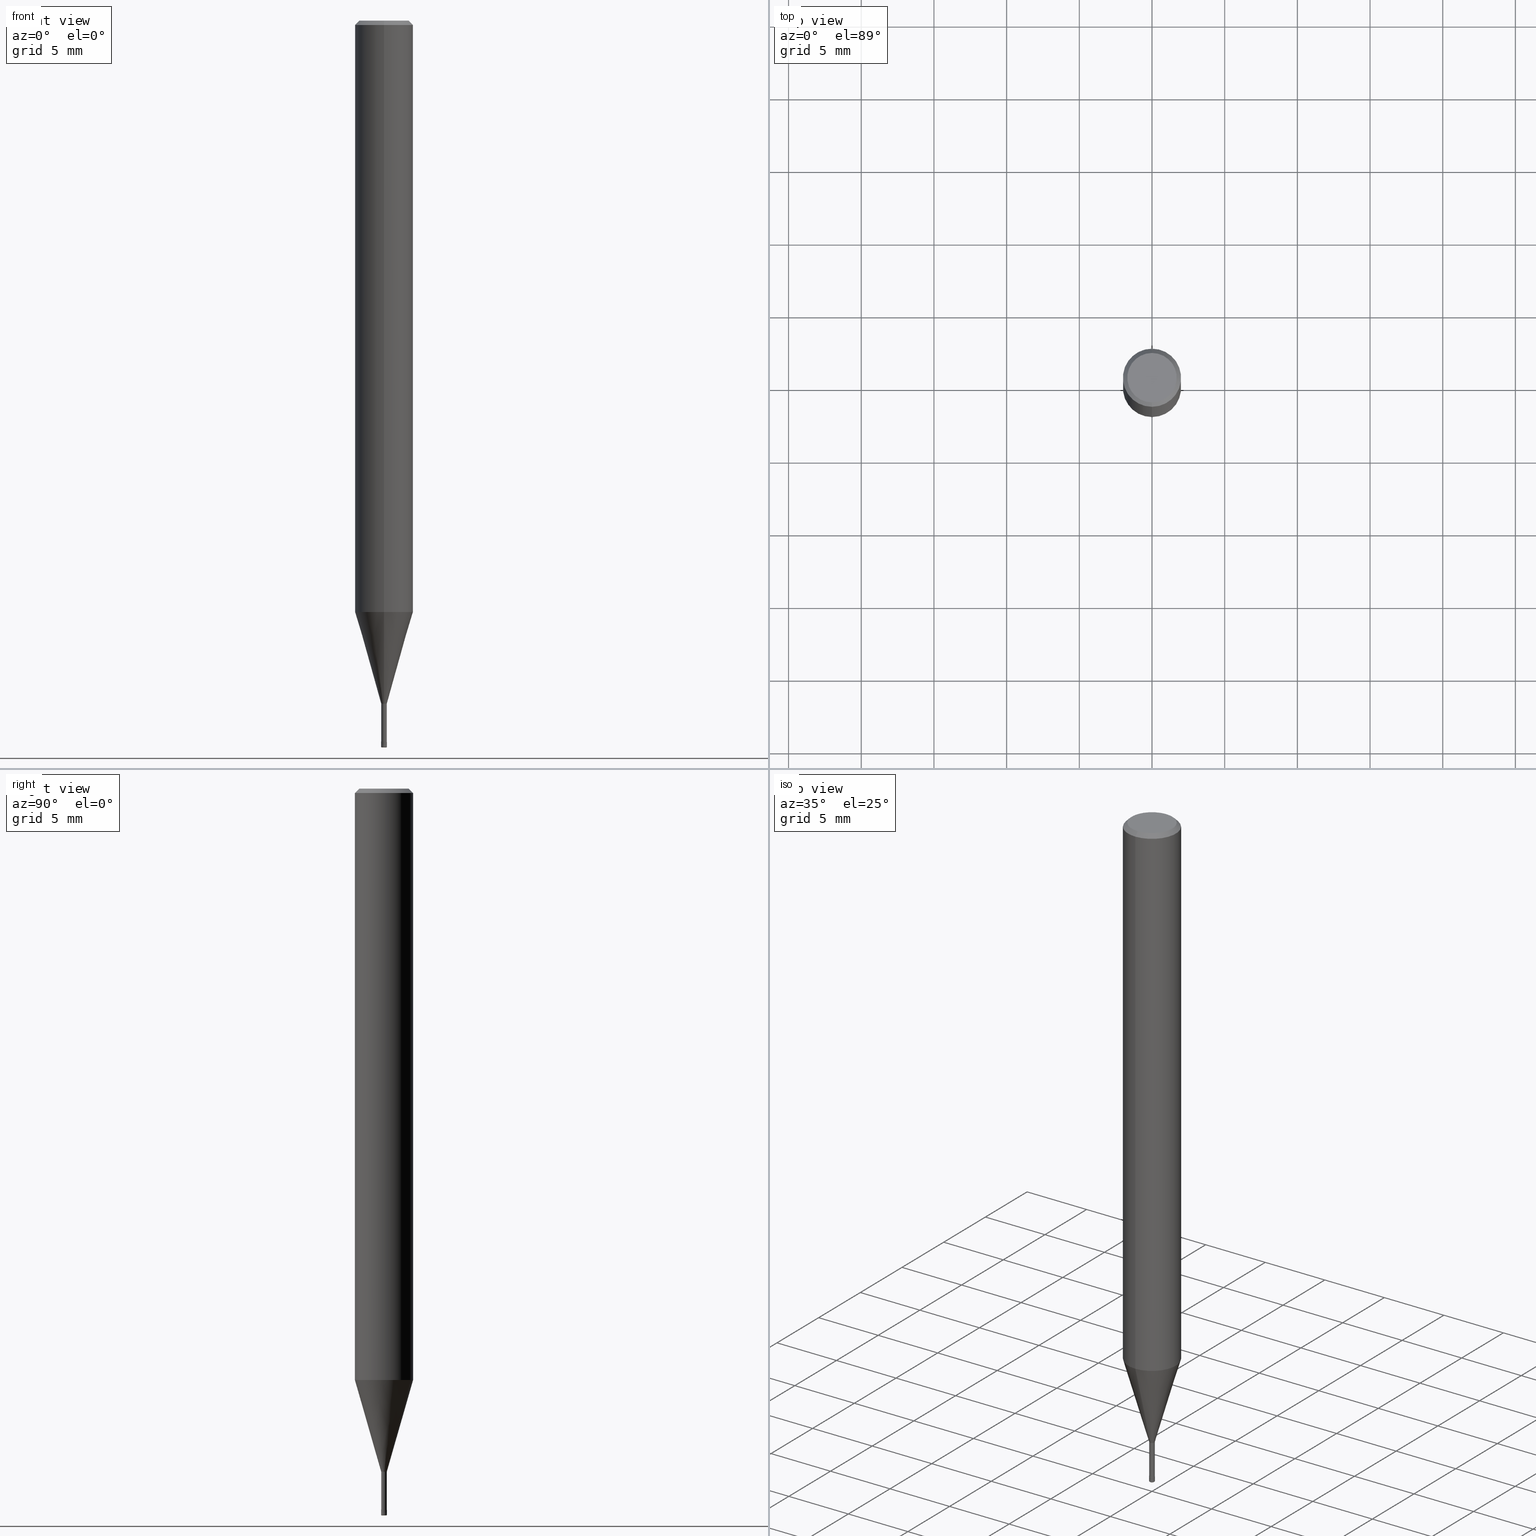
[diagram: canonical four-view strip — front | top / right | iso, engineering-drawing reading convention]
A machine part, canonical four-view strip (front | top / right | iso — engineering-drawing reading convention). The complete STEP part file that produces these views, byte-faithful:
ISO-10303-21;
HEADER;
FILE_DESCRIPTION(('no description'),'unknown implementation level');
FILE_NAME('HLRS2004-005-030E-Huellk.stp','  ',('CIMSOURCE GmbH'),('CADClick - KiM GmbH - www.kimweb.de'),'unknown preprocess','ACIS','unknown authorization');
FILE_SCHEMA(('automotive_design'));
ENDSEC;
DATA;
#1=MECHANICAL_DESIGN_GEOMETRIC_PRESENTATION_REPRESENTATION(' ',(#14,#15,#16,#17,#18,#19,#20,#21,#22,#23,#24,#25,#26,#27,#28,#29,#30,#31,#32,#33,#34,#35,#36,#37,#38,#39,#40,#41,#42,#43,#44,#45,#46,#47,#48,#49,#50,#51,#52,#53,#54,#55,#56,#57,#58,#59,#60,#61,#62,#63,#64,#65,#66,#67,#68,#69,#70,#71,#72,#73,#74,#75,#76,#77,#78,#79,#80),#10);
#2=PRODUCT_DEFINITION_CONTEXT('',#81,'design');
#3=APPLICATION_PROTOCOL_DEFINITION('INTERNATIONAL STANDARD','automotive_design',1994,#81);
#4=PRODUCT_CATEGORY_RELATIONSHIP('NONE','NONE',#82,#83);
#5=SHAPE_DEFINITION_REPRESENTATION(#84,#85);
#6=PRODUCT_DEFINITION_CONTEXT('',#86,'design');
#7=APPLICATION_PROTOCOL_DEFINITION('INTERNATIONAL STANDARD','automotive_design',1994,#86);
#8=PRODUCT_CATEGORY_RELATIONSHIP('NONE','NONE',#87,#88);
#9=SHAPE_DEFINITION_REPRESENTATION(#89,#90);
#10= (GEOMETRIC_REPRESENTATION_CONTEXT(3)GLOBAL_UNCERTAINTY_ASSIGNED_CONTEXT((#93))GLOBAL_UNIT_ASSIGNED_CONTEXT((#95,#96,#97))REPRESENTATION_CONTEXT('NONE','WORKSPACE'));
#14=STYLED_ITEM('',(#99),#100);
#15=STYLED_ITEM('',(#101),#102);
#16=STYLED_ITEM('',(#103),#104);
#17=STYLED_ITEM('',(#105),#106);
#18=STYLED_ITEM('',(#107),#108);
#19=STYLED_ITEM('',(#109),#110);
#20=STYLED_ITEM('',(#111),#112);
#21=STYLED_ITEM('',(#113),#114);
#22=STYLED_ITEM('',(#115),#116);
#23=STYLED_ITEM('',(#117),#118);
#24=STYLED_ITEM('',(#119),#120);
#25=STYLED_ITEM('',(#121),#122);
#26=STYLED_ITEM('',(#123),#124);
#27=STYLED_ITEM('',(#125),#126);
#28=STYLED_ITEM('',(#127),#128);
#29=STYLED_ITEM('',(#129),#130);
#30=STYLED_ITEM('',(#131),#132);
#31=STYLED_ITEM('',(#133),#134);
#32=STYLED_ITEM('',(#135),#136);
#33=STYLED_ITEM('',(#137),#138);
#34=STYLED_ITEM('',(#139),#140);
#35=STYLED_ITEM('',(#141),#142);
#36=STYLED_ITEM('',(#143),#144);
#37=STYLED_ITEM('',(#145),#146);
#38=STYLED_ITEM('',(#147),#148);
#39=STYLED_ITEM('',(#149),#150);
#40=STYLED_ITEM('',(#151),#152);
#41=STYLED_ITEM('',(#153),#154);
#42=STYLED_ITEM('',(#155),#156);
#43=STYLED_ITEM('',(#157),#158);
#44=STYLED_ITEM('',(#159),#160);
#45=STYLED_ITEM('',(#161),#162);
#46=STYLED_ITEM('',(#163),#164);
#47=STYLED_ITEM('',(#165),#166);
#48=STYLED_ITEM('',(#167),#168);
#49=STYLED_ITEM('',(#169),#170);
#50=STYLED_ITEM('',(#171),#172);
#51=STYLED_ITEM('',(#173),#174);
#52=STYLED_ITEM('',(#175),#176);
#53=STYLED_ITEM('',(#177),#178);
#54=STYLED_ITEM('',(#179),#180);
#55=STYLED_ITEM('',(#181),#182);
#56=STYLED_ITEM('',(#183),#184);
#57=STYLED_ITEM('',(#185),#186);
#58=STYLED_ITEM('',(#187),#188);
#59=STYLED_ITEM('',(#189),#190);
#60=STYLED_ITEM('',(#191),#192);
#61=STYLED_ITEM('',(#193),#194);
#62=STYLED_ITEM('',(#195),#196);
#63=STYLED_ITEM('',(#197),#198);
#64=STYLED_ITEM('',(#199),#200);
#65=STYLED_ITEM('',(#201),#202);
#66=STYLED_ITEM('',(#203),#204);
#67=STYLED_ITEM('',(#205),#206);
#68=STYLED_ITEM('',(#207),#208);
#69=STYLED_ITEM('',(#209),#210);
#70=STYLED_ITEM('',(#211),#212);
#71=STYLED_ITEM('',(#213),#214);
#72=STYLED_ITEM('',(#215),#216);
#73=STYLED_ITEM('',(#217),#218);
#74=STYLED_ITEM('',(#219),#220);
#75=STYLED_ITEM('',(#221),#222);
#76=STYLED_ITEM('',(#223),#224);
#77=STYLED_ITEM('',(#225),#226);
#78=STYLED_ITEM('',(#227),#228);
#79=STYLED_ITEM('',(#229),#230);
#80=STYLED_ITEM('',(#231),#232);
#81=APPLICATION_CONTEXT(' ');
#82=PRODUCT_CATEGORY('part','NONE');
#83=PRODUCT_RELATED_PRODUCT_CATEGORY('detail',' ',(#233));
#84=PRODUCT_DEFINITION_SHAPE('NONE','NONE',#234);
#85=ADVANCED_BREP_SHAPE_REPRESENTATION('1',(#126,#235),#10);
#86=APPLICATION_CONTEXT(' ');
#87=PRODUCT_CATEGORY('part','NONE');
#88=PRODUCT_RELATED_PRODUCT_CATEGORY('detail',' ',(#236));
#89=PRODUCT_DEFINITION_SHAPE('NONE','NONE',#237);
#90=ADVANCED_BREP_SHAPE_REPRESENTATION('2',(#226,#238),#10);
#93=UNCERTAINTY_MEASURE_WITH_UNIT(LENGTH_MEASURE(1.0E-006),#95,'','');
#95= (CONVERSION_BASED_UNIT('MILLIMETRE',#241)LENGTH_UNIT()NAMED_UNIT(#244));
#96= (NAMED_UNIT(#246)PLANE_ANGLE_UNIT()SI_UNIT($,.RADIAN.));
#97= (NAMED_UNIT(#246)SOLID_ANGLE_UNIT()SI_UNIT($,.STERADIAN.));
#99=PRESENTATION_STYLE_ASSIGNMENT((#252));
#100=ADVANCED_FACE('',(#253),#254,.T.);
#101=PRESENTATION_STYLE_ASSIGNMENT((#255));
#102=ADVANCED_FACE('',(#256),#257,.T.);
#103=PRESENTATION_STYLE_ASSIGNMENT((#258));
#104=ADVANCED_FACE('',(#259),#260,.T.);
#105=PRESENTATION_STYLE_ASSIGNMENT((#261));
#106=VERTEX_POINT('',#262);
#107=PRESENTATION_STYLE_ASSIGNMENT((#263));
#108=ADVANCED_FACE('',(#264),#265,.T.);
#109=PRESENTATION_STYLE_ASSIGNMENT((#266));
#110=VERTEX_POINT('',#267);
#111=PRESENTATION_STYLE_ASSIGNMENT((#268));
#112=VERTEX_POINT('',#269);
#113=PRESENTATION_STYLE_ASSIGNMENT((#270));
#114=VERTEX_POINT('',#271);
#115=PRESENTATION_STYLE_ASSIGNMENT((#272));
#116=ADVANCED_FACE('',(#273,#274),#275,.T.);
#117=PRESENTATION_STYLE_ASSIGNMENT((#276));
#118=ADVANCED_FACE('',(#277),#278,.T.);
#119=PRESENTATION_STYLE_ASSIGNMENT((#279));
#120=EDGE_CURVE('',#208,#112,#280,.T.);
#121=PRESENTATION_STYLE_ASSIGNMENT((#281));
#122=ADVANCED_FACE('',(#282),#283,.T.);
#123=PRESENTATION_STYLE_ASSIGNMENT((#284));
#124=VERTEX_POINT('',#285);
#125=PRESENTATION_STYLE_ASSIGNMENT((#286));
#126=MANIFOLD_SOLID_BREP('1',#287);
#127=PRESENTATION_STYLE_ASSIGNMENT((#288));
#128=EDGE_CURVE('',#156,#194,#289,.T.);
#129=PRESENTATION_STYLE_ASSIGNMENT((#290));
#130=ADVANCED_FACE('',(#291),#292,.T.);
#131=PRESENTATION_STYLE_ASSIGNMENT((#293));
#132=EDGE_CURVE('',#162,#114,#294,.T.);
#133=PRESENTATION_STYLE_ASSIGNMENT((#295));
#134=EDGE_CURVE('',#162,#218,#296,.T.);
#135=PRESENTATION_STYLE_ASSIGNMENT((#297));
#136=ADVANCED_FACE('',(#298),#299,.T.);
#137=PRESENTATION_STYLE_ASSIGNMENT((#300));
#138=VERTEX_POINT('',#301);
#139=PRESENTATION_STYLE_ASSIGNMENT((#302));
#140=EDGE_CURVE('',#228,#110,#303,.T.);
#141=PRESENTATION_STYLE_ASSIGNMENT((#304));
#142=ADVANCED_FACE('',(#305),#306,.T.);
#143=PRESENTATION_STYLE_ASSIGNMENT((#307));
#144=EDGE_CURVE('',#112,#138,#308,.T.);
#145=PRESENTATION_STYLE_ASSIGNMENT((#309));
#146=EDGE_CURVE('',#198,#124,#310,.T.);
#147=PRESENTATION_STYLE_ASSIGNMENT((#311));
#148=EDGE_CURVE('',#112,#208,#312,.T.);
#149=PRESENTATION_STYLE_ASSIGNMENT((#313));
#150=ADVANCED_FACE('',(#314),#315,.T.);
#151=PRESENTATION_STYLE_ASSIGNMENT((#316));
#152=VERTEX_POINT('',#317);
#153=PRESENTATION_STYLE_ASSIGNMENT((#318));
#154=EDGE_CURVE('',#106,#114,#319,.T.);
#155=PRESENTATION_STYLE_ASSIGNMENT((#320));
#156=VERTEX_POINT('',#321);
#157=PRESENTATION_STYLE_ASSIGNMENT((#322));
#158=VERTEX_POINT('',#323);
#159=PRESENTATION_STYLE_ASSIGNMENT((#324));
#160=ADVANCED_FACE('',(#325),#326,.T.);
#161=PRESENTATION_STYLE_ASSIGNMENT((#327));
#162=VERTEX_POINT('',#328);
#163=PRESENTATION_STYLE_ASSIGNMENT((#329));
#164=EDGE_CURVE('',#124,#198,#330,.T.);
#165=PRESENTATION_STYLE_ASSIGNMENT((#331));
#166=VERTEX_POINT('',#332);
#167=PRESENTATION_STYLE_ASSIGNMENT((#333));
#168=EDGE_CURVE('',#194,#192,#334,.T.);
#169=PRESENTATION_STYLE_ASSIGNMENT((#335));
#170=ADVANCED_FACE('',(#336),#337,.T.);
#171=PRESENTATION_STYLE_ASSIGNMENT((#338));
#172=EDGE_CURVE('',#152,#208,#339,.T.);
#173=PRESENTATION_STYLE_ASSIGNMENT((#340));
#174=EDGE_CURVE('',#114,#106,#341,.T.);
#175=PRESENTATION_STYLE_ASSIGNMENT((#342));
#176=ADVANCED_FACE('',(#343),#344,.T.);
#177=PRESENTATION_STYLE_ASSIGNMENT((#345));
#178=EDGE_CURVE('',#166,#156,#346,.T.);
#179=PRESENTATION_STYLE_ASSIGNMENT((#347));
#180=ADVANCED_FACE('',(#348),#349,.T.);
#181=PRESENTATION_STYLE_ASSIGNMENT((#350));
#182=ADVANCED_FACE('',(#351),#352,.T.);
#183=PRESENTATION_STYLE_ASSIGNMENT((#353));
#184=EDGE_CURVE('',#158,#162,#354,.T.);
#185=PRESENTATION_STYLE_ASSIGNMENT((#355));
#186=EDGE_CURVE('',#152,#138,#356,.T.);
#187=PRESENTATION_STYLE_ASSIGNMENT((#357));
#188=EDGE_CURVE('',#110,#166,#358,.T.);
#189=PRESENTATION_STYLE_ASSIGNMENT((#359));
#190=ADVANCED_FACE('',(#360),#361,.T.);
#191=PRESENTATION_STYLE_ASSIGNMENT((#362));
#192=VERTEX_POINT('',#363);
#193=PRESENTATION_STYLE_ASSIGNMENT((#364));
#194=VERTEX_POINT('',#365);
#195=PRESENTATION_STYLE_ASSIGNMENT((#366));
#196=EDGE_CURVE('',#206,#158,#367,.T.);
#197=PRESENTATION_STYLE_ASSIGNMENT((#368));
#198=VERTEX_POINT('',#369);
#199=PRESENTATION_STYLE_ASSIGNMENT((#370));
#200=EDGE_CURVE('',#106,#218,#371,.T.);
#201=PRESENTATION_STYLE_ASSIGNMENT((#372));
#202=EDGE_CURVE('',#138,#152,#373,.T.);
#203=PRESENTATION_STYLE_ASSIGNMENT((#374));
#204=EDGE_CURVE('',#198,#112,#375,.T.);
#205=PRESENTATION_STYLE_ASSIGNMENT((#376));
#206=VERTEX_POINT('',#377);
#207=PRESENTATION_STYLE_ASSIGNMENT((#378));
#208=VERTEX_POINT('',#379);
#209=PRESENTATION_STYLE_ASSIGNMENT((#380));
#210=EDGE_CURVE('',#208,#124,#381,.T.);
#211=PRESENTATION_STYLE_ASSIGNMENT((#382));
#212=EDGE_CURVE('',#218,#206,#383,.T.);
#213=PRESENTATION_STYLE_ASSIGNMENT((#384));
#214=EDGE_CURVE('',#158,#206,#385,.T.);
#215=PRESENTATION_STYLE_ASSIGNMENT((#386));
#216=EDGE_CURVE('',#192,#194,#387,.T.);
#217=PRESENTATION_STYLE_ASSIGNMENT((#388));
#218=VERTEX_POINT('',#389);
#219=PRESENTATION_STYLE_ASSIGNMENT((#390));
#220=EDGE_CURVE('',#218,#162,#391,.T.);
#221=PRESENTATION_STYLE_ASSIGNMENT((#392));
#222=EDGE_CURVE('',#156,#166,#393,.T.);
#223=PRESENTATION_STYLE_ASSIGNMENT((#394));
#224=EDGE_CURVE('',#110,#228,#395,.T.);
#225=PRESENTATION_STYLE_ASSIGNMENT((#396));
#226=MANIFOLD_SOLID_BREP('2',#397);
#227=PRESENTATION_STYLE_ASSIGNMENT((#398));
#228=VERTEX_POINT('',#399);
#229=PRESENTATION_STYLE_ASSIGNMENT((#400));
#230=EDGE_CURVE('',#156,#228,#401,.T.);
#231=PRESENTATION_STYLE_ASSIGNMENT((#402));
#232=EDGE_CURVE('',#192,#166,#403,.T.);
#233=PRODUCT('1','1','PART-1-DESC',(#404));
#234=PRODUCT_DEFINITION('NONE','NONE',#405,#2);
#235=AXIS2_PLACEMENT_3D('',#406,#407,#408);
#236=PRODUCT('2','2','PART-2-DESC',(#409));
#237=PRODUCT_DEFINITION('NONE','NONE',#410,#6);
#238=AXIS2_PLACEMENT_3D('',#411,#412,#413);
#241=LENGTH_MEASURE_WITH_UNIT(LENGTH_MEASURE(1.0),#414);
#244=DIMENSIONAL_EXPONENTS(1.0,0.0,0.0,0.0,0.0,0.0,0.0);
#246=DIMENSIONAL_EXPONENTS(0.0,0.0,0.0,0.0,0.0,0.0,0.0);
#252=SURFACE_STYLE_USAGE(.BOTH.,#415);
#253=FACE_OUTER_BOUND('',#416,.T.);
#254=CYLINDRICAL_SURFACE('',#417,0.18995);
#255=SURFACE_STYLE_USAGE(.BOTH.,#418);
#256=FACE_OUTER_BOUND('',#419,.T.);
#257=CONICAL_SURFACE('',#420,1.09495,0.279261921280279);
#258=SURFACE_STYLE_USAGE(.BOTH.,#421);
#259=FACE_OUTER_BOUND('',#422,.T.);
#260=PLANE('',#423);
#261=POINT_STYLE(' ',#424,POSITIVE_LENGTH_MEASURE(1.0E-006),#425);
#262=CARTESIAN_POINT('',(0.0,1.7,0.0));
#263=SURFACE_STYLE_USAGE(.BOTH.,#426);
#264=FACE_OUTER_BOUND('',#427,.T.);
#265=TOROIDAL_SURFACE('',#428,0.15,0.0499999999999998);
#266=POINT_STYLE(' ',#429,POSITIVE_LENGTH_MEASURE(1.0E-006),#430);
#267=CARTESIAN_POINT('',(0.0,0.15,-50.0));
#268=POINT_STYLE(' ',#431,POSITIVE_LENGTH_MEASURE(1.0E-006),#432);
#269=CARTESIAN_POINT('',(2.3261397690856E-017,-0.18995,-47.0));
#270=POINT_STYLE(' ',#433,POSITIVE_LENGTH_MEASURE(1.0E-006),#434);
#271=CARTESIAN_POINT('',(2.08183080149804E-016,-1.7,0.0));
#272=SURFACE_STYLE_USAGE(.BOTH.,#435);
#273=FACE_OUTER_BOUND('',#436,.T.);
#274=FACE_BOUND('',#437,.T.);
#275=PLANE('',#438);
#276=SURFACE_STYLE_USAGE(.BOTH.,#439);
#277=FACE_OUTER_BOUND('',#440,.T.);
#278=CONICAL_SURFACE('',#441,0.19995,0.000285714277939796);
#279=CURVE_STYLE('',#442,POSITIVE_LENGTH_MEASURE(1.0E-006),#443);
#280=CIRCLE('',#444,0.18995);
#281=SURFACE_STYLE_USAGE(.BOTH.,#445);
#282=FACE_OUTER_BOUND('',#446,.T.);
#283=CONICAL_SURFACE('',#447,1.09495,0.279261921280279);
#284=POINT_STYLE(' ',#448,POSITIVE_LENGTH_MEASURE(1.0E-006),#449);
#285=CARTESIAN_POINT('',(0.0,0.18995,-49.6));
#286=SURFACE_STYLE_USAGE(.BOTH.,#450);
#287=CLOSED_SHELL('',(#100,#102,#182,#170,#116,#104,#190,#130,#122,#150,#176));
#288=CURVE_STYLE('',#451,POSITIVE_LENGTH_MEASURE(1.0E-006),#452);
#289=LINE('',#453,#454);
#290=SURFACE_STYLE_USAGE(.BOTH.,#455);
#291=FACE_OUTER_BOUND('',#456,.T.);
#292=CYLINDRICAL_SURFACE('',#457,2.0);
#293=CURVE_STYLE('',#458,POSITIVE_LENGTH_MEASURE(1.0E-006),#459);
#294=LINE('',#460,#461);
#295=CURVE_STYLE('',#462,POSITIVE_LENGTH_MEASURE(1.0E-006),#463);
#296=CIRCLE('',#464,2.0);
#297=SURFACE_STYLE_USAGE(.BOTH.,#465);
#298=FACE_OUTER_BOUND('',#466,.T.);
#299=TOROIDAL_SURFACE('',#467,0.15,0.0499999999999998);
#300=POINT_STYLE(' ',#468,POSITIVE_LENGTH_MEASURE(1.0E-006),#469);
#301=CARTESIAN_POINT('',(2.44915147732706E-016,-1.99995,-40.688));
#302=CURVE_STYLE('',#470,POSITIVE_LENGTH_MEASURE(1.0E-006),#471);
#303=CIRCLE('',#472,0.15);
#304=SURFACE_STYLE_USAGE(.BOTH.,#473);
#305=FACE_OUTER_BOUND('',#474,.T.);
#306=PLANE('',#475);
#307=CURVE_STYLE('',#476,POSITIVE_LENGTH_MEASURE(1.0E-006),#477);
#308=LINE('',#478,#479);
#309=CURVE_STYLE('',#480,POSITIVE_LENGTH_MEASURE(1.0E-006),#481);
#310=CIRCLE('',#482,0.18995);
#311=CURVE_STYLE('',#483,POSITIVE_LENGTH_MEASURE(1.0E-006),#484);
#312=CIRCLE('',#485,0.18995);
#313=SURFACE_STYLE_USAGE(.BOTH.,#486);
#314=FACE_OUTER_BOUND('',#487,.T.);
#315=CYLINDRICAL_SURFACE('',#488,0.18995);
#316=POINT_STYLE(' ',#489,POSITIVE_LENGTH_MEASURE(1.0E-006),#490);
#317=CARTESIAN_POINT('',(0.0,1.99995,-40.688));
#318=CURVE_STYLE('',#491,POSITIVE_LENGTH_MEASURE(1.0E-006),#492);
#319=CIRCLE('',#493,1.7);
#320=POINT_STYLE(' ',#494,POSITIVE_LENGTH_MEASURE(1.0E-006),#495);
#321=CARTESIAN_POINT('',(2.44921270764475E-017,-0.2,-49.95));
#322=POINT_STYLE(' ',#496,POSITIVE_LENGTH_MEASURE(1.0E-006),#497);
#323=CARTESIAN_POINT('',(2.44921270764475E-016,-2.0,-40.688));
#324=SURFACE_STYLE_USAGE(.BOTH.,#498);
#325=FACE_OUTER_BOUND('',#499,.T.);
#326=PLANE('',#500);
#327=POINT_STYLE(' ',#501,POSITIVE_LENGTH_MEASURE(1.0E-006),#502);
#328=CARTESIAN_POINT('',(2.44921270764475E-016,-2.0,-0.299999999999997));
#329=CURVE_STYLE('',#503,POSITIVE_LENGTH_MEASURE(1.0E-006),#504);
#330=CIRCLE('',#505,0.18995);
#331=POINT_STYLE(' ',#506,POSITIVE_LENGTH_MEASURE(1.0E-006),#507);
#332=CARTESIAN_POINT('',(0.0,0.2,-49.95));
#333=CURVE_STYLE('',#508,POSITIVE_LENGTH_MEASURE(1.0E-006),#509);
#334=CIRCLE('',#510,0.1999);
#335=SURFACE_STYLE_USAGE(.BOTH.,#511);
#336=FACE_OUTER_BOUND('',#512,.T.);
#337=CONICAL_SURFACE('',#513,1.85,0.785398163397453);
#338=CURVE_STYLE('',#514,POSITIVE_LENGTH_MEASURE(1.0E-006),#515);
#339=LINE('',#516,#517);
#340=CURVE_STYLE('',#518,POSITIVE_LENGTH_MEASURE(1.0E-006),#519);
#341=CIRCLE('',#520,1.7);
#342=SURFACE_STYLE_USAGE(.BOTH.,#521);
#343=FACE_OUTER_BOUND('',#522,.T.);
#344=PLANE('',#523);
#345=CURVE_STYLE('',#524,POSITIVE_LENGTH_MEASURE(1.0E-006),#525);
#346=CIRCLE('',#526,0.2);
#347=SURFACE_STYLE_USAGE(.BOTH.,#527);
#348=FACE_OUTER_BOUND('',#528,.T.);
#349=CONICAL_SURFACE('',#529,0.19995,0.000285714277939796);
#350=SURFACE_STYLE_USAGE(.BOTH.,#530);
#351=FACE_OUTER_BOUND('',#531,.T.);
#352=CYLINDRICAL_SURFACE('',#532,2.0);
#353=CURVE_STYLE('',#533,POSITIVE_LENGTH_MEASURE(1.0E-006),#534);
#354=LINE('',#535,#536);
#355=CURVE_STYLE('',#537,POSITIVE_LENGTH_MEASURE(1.0E-006),#538);
#356=CIRCLE('',#539,1.99995);
#357=CURVE_STYLE('',#540,POSITIVE_LENGTH_MEASURE(1.0E-006),#541);
#358=CIRCLE('',#542,0.0499999999999998);
#359=SURFACE_STYLE_USAGE(.BOTH.,#543);
#360=FACE_OUTER_BOUND('',#544,.T.);
#361=CONICAL_SURFACE('',#545,1.85,0.785398163397453);
#362=POINT_STYLE(' ',#546,POSITIVE_LENGTH_MEASURE(1.0E-006),#547);
#363=CARTESIAN_POINT('',(0.0,0.1999,-49.6));
#364=POINT_STYLE(' ',#548,POSITIVE_LENGTH_MEASURE(1.0E-006),#549);
#365=CARTESIAN_POINT('',(2.44798810129093E-017,-0.1999,-49.6));
#366=CURVE_STYLE('',#550,POSITIVE_LENGTH_MEASURE(1.0E-006),#551);
#367=CIRCLE('',#552,2.0);
#368=POINT_STYLE(' ',#553,POSITIVE_LENGTH_MEASURE(1.0E-006),#554);
#369=CARTESIAN_POINT('',(2.32613976908561E-017,-0.18995,-49.6));
#370=CURVE_STYLE('',#555,POSITIVE_LENGTH_MEASURE(1.0E-006),#556);
#371=LINE('',#557,#558);
#372=CURVE_STYLE('',#559,POSITIVE_LENGTH_MEASURE(1.0E-006),#560);
#373=CIRCLE('',#561,1.99995);
#374=CURVE_STYLE('',#562,POSITIVE_LENGTH_MEASURE(1.0E-006),#563);
#375=LINE('',#564,#565);
#376=POINT_STYLE(' ',#566,POSITIVE_LENGTH_MEASURE(1.0E-006),#567);
#377=CARTESIAN_POINT('',(0.0,2.0,-40.688));
#378=POINT_STYLE(' ',#568,POSITIVE_LENGTH_MEASURE(1.0E-006),#569);
#379=CARTESIAN_POINT('',(0.0,0.18995,-47.0));
#380=CURVE_STYLE('',#570,POSITIVE_LENGTH_MEASURE(1.0E-006),#571);
#381=LINE('',#572,#573);
#382=CURVE_STYLE('',#574,POSITIVE_LENGTH_MEASURE(1.0E-006),#575);
#383=LINE('',#576,#577);
#384=CURVE_STYLE('',#578,POSITIVE_LENGTH_MEASURE(1.0E-006),#579);
#385=CIRCLE('',#580,2.0);
#386=CURVE_STYLE('',#581,POSITIVE_LENGTH_MEASURE(1.0E-006),#582);
#387=CIRCLE('',#583,0.1999);
#388=POINT_STYLE(' ',#584,POSITIVE_LENGTH_MEASURE(1.0E-006),#585);
#389=CARTESIAN_POINT('',(0.0,2.0,-0.299999999999997));
#390=CURVE_STYLE('',#586,POSITIVE_LENGTH_MEASURE(1.0E-006),#587);
#391=CIRCLE('',#588,2.0);
#392=CURVE_STYLE('',#589,POSITIVE_LENGTH_MEASURE(1.0E-006),#590);
#393=CIRCLE('',#591,0.2);
#394=CURVE_STYLE('',#592,POSITIVE_LENGTH_MEASURE(1.0E-006),#593);
#395=CIRCLE('',#594,0.15);
#396=SURFACE_STYLE_USAGE(.BOTH.,#595);
#397=CLOSED_SHELL('',(#108,#180,#142,#118,#136,#160));
#398=POINT_STYLE(' ',#596,POSITIVE_LENGTH_MEASURE(1.0E-006),#597);
#399=CARTESIAN_POINT('',(1.83690953073357E-017,-0.15,-50.0));
#400=CURVE_STYLE('',#598,POSITIVE_LENGTH_MEASURE(1.0E-006),#599);
#401=CIRCLE('',#600,0.0499999999999998);
#402=CURVE_STYLE('',#601,POSITIVE_LENGTH_MEASURE(1.0E-006),#602);
#403=LINE('',#603,#604);
#404=PRODUCT_CONTEXT('',#81,'mechanical');
#405=PRODUCT_DEFINITION_FORMATION_WITH_SPECIFIED_SOURCE(' ','NONE',#233,.NOT_KNOWN.);
#406=CARTESIAN_POINT('',(0.0,0.0,0.0));
#407=DIRECTION('',(0.0,0.0,1.0));
#408=DIRECTION('',(1.0,0.0,0.0));
#409=PRODUCT_CONTEXT('',#86,'mechanical');
#410=PRODUCT_DEFINITION_FORMATION_WITH_SPECIFIED_SOURCE(' ','NONE',#236,.NOT_KNOWN.);
#411=CARTESIAN_POINT('',(0.0,0.0,0.0));
#412=DIRECTION('',(0.0,0.0,1.0));
#413=DIRECTION('',(1.0,0.0,0.0));
#414= (NAMED_UNIT(#244)LENGTH_UNIT()SI_UNIT(.MILLI.,.METRE.));
#415=SURFACE_SIDE_STYLE('',(#606));
#416=EDGE_LOOP('',(#607,#608,#609,#610));
#417=AXIS2_PLACEMENT_3D('',#611,#612,#613);
#418=SURFACE_SIDE_STYLE('',(#614));
#419=EDGE_LOOP('',(#615,#616,#617,#618));
#420=AXIS2_PLACEMENT_3D('',#619,#620,#621);
#421=SURFACE_SIDE_STYLE('',(#622));
#422=EDGE_LOOP('',(#623,#624));
#423=AXIS2_PLACEMENT_3D('',#625,#626,#627);
#424=PRE_DEFINED_MARKER('');
#425=COLOUR_RGB('',0.498039215803146,0.498039215803146,0.498039215803146);
#426=SURFACE_SIDE_STYLE('',(#628));
#427=EDGE_LOOP('',(#629,#630,#631,#632));
#428=AXIS2_PLACEMENT_3D('',#633,#634,#635);
#429=PRE_DEFINED_MARKER('');
#430=COLOUR_RGB('',0.800000011920929,0.800000011920929,0.800000011920929);
#431=PRE_DEFINED_MARKER('');
#432=COLOUR_RGB('',0.498039215803146,0.498039215803146,0.498039215803146);
#433=PRE_DEFINED_MARKER('');
#434=COLOUR_RGB('',0.498039215803146,0.498039215803146,0.498039215803146);
#435=SURFACE_SIDE_STYLE('',(#636));
#436=EDGE_LOOP('',(#637,#638));
#437=EDGE_LOOP('',(#639,#640));
#438=AXIS2_PLACEMENT_3D('',#641,#642,#643);
#439=SURFACE_SIDE_STYLE('',(#644));
#440=EDGE_LOOP('',(#645,#646,#647,#648));
#441=AXIS2_PLACEMENT_3D('',#649,#650,#651);
#442=DRAUGHTING_PRE_DEFINED_CURVE_FONT('continuous');
#443=COLOUR_RGB('',0.498039215803146,0.498039215803146,0.498039215803146);
#444=AXIS2_PLACEMENT_3D('',#652,#653,#654);
#445=SURFACE_SIDE_STYLE('',(#655));
#446=EDGE_LOOP('',(#656,#657,#658,#659));
#447=AXIS2_PLACEMENT_3D('',#660,#661,#662);
#448=PRE_DEFINED_MARKER('');
#449=COLOUR_RGB('',0.498039215803146,0.498039215803146,0.498039215803146);
#450=SURFACE_SIDE_STYLE('',(#663));
#451=DRAUGHTING_PRE_DEFINED_CURVE_FONT('continuous');
#452=COLOUR_RGB('',0.800000011920929,0.800000011920929,0.800000011920929);
#453=CARTESIAN_POINT('',(2.44860040446784E-017,-0.19995,-49.775));
#454=VECTOR('',#664,1.0);
#455=SURFACE_SIDE_STYLE('',(#665));
#456=EDGE_LOOP('',(#666,#667,#668,#669));
#457=AXIS2_PLACEMENT_3D('',#670,#671,#672);
#458=DRAUGHTING_PRE_DEFINED_CURVE_FONT('continuous');
#459=COLOUR_RGB('',0.498039215803146,0.498039215803146,0.498039215803146);
#460=CARTESIAN_POINT('',(2.2655217545714E-016,-1.85,-0.149999999999999));
#461=VECTOR('',#673,1.0);
#462=DRAUGHTING_PRE_DEFINED_CURVE_FONT('continuous');
#463=COLOUR_RGB('',0.498039215803146,0.498039215803146,0.498039215803146);
#464=AXIS2_PLACEMENT_3D('',#674,#675,#676);
#465=SURFACE_SIDE_STYLE('',(#677));
#466=EDGE_LOOP('',(#678,#679,#680,#681));
#467=AXIS2_PLACEMENT_3D('',#682,#683,#684);
#468=PRE_DEFINED_MARKER('');
#469=COLOUR_RGB('',0.498039215803146,0.498039215803146,0.498039215803146);
#470=DRAUGHTING_PRE_DEFINED_CURVE_FONT('continuous');
#471=COLOUR_RGB('',0.800000011920929,0.800000011920929,0.800000011920929);
#472=AXIS2_PLACEMENT_3D('',#685,#686,#687);
#473=SURFACE_SIDE_STYLE('',(#688));
#474=EDGE_LOOP('',(#689,#690));
#475=AXIS2_PLACEMENT_3D('',#691,#692,#693);
#476=DRAUGHTING_PRE_DEFINED_CURVE_FONT('continuous');
#477=COLOUR_RGB('',0.498039215803146,0.498039215803146,0.498039215803146);
#478=CARTESIAN_POINT('',(1.34088272711781E-016,-1.09495,-43.844));
#479=VECTOR('',#694,1.0);
#480=DRAUGHTING_PRE_DEFINED_CURVE_FONT('continuous');
#481=COLOUR_RGB('',0.498039215803146,0.498039215803146,0.498039215803146);
#482=AXIS2_PLACEMENT_3D('',#695,#696,#697);
#483=DRAUGHTING_PRE_DEFINED_CURVE_FONT('continuous');
#484=COLOUR_RGB('',0.498039215803146,0.498039215803146,0.498039215803146);
#485=AXIS2_PLACEMENT_3D('',#698,#699,#700);
#486=SURFACE_SIDE_STYLE('',(#701));
#487=EDGE_LOOP('',(#702,#703,#704,#705));
#488=AXIS2_PLACEMENT_3D('',#706,#707,#708);
#489=PRE_DEFINED_MARKER('');
#490=COLOUR_RGB('',0.498039215803146,0.498039215803146,0.498039215803146);
#491=DRAUGHTING_PRE_DEFINED_CURVE_FONT('continuous');
#492=COLOUR_RGB('',0.498039215803146,0.498039215803146,0.498039215803146);
#493=AXIS2_PLACEMENT_3D('',#709,#710,#711);
#494=PRE_DEFINED_MARKER('');
#495=COLOUR_RGB('',0.800000011920929,0.800000011920929,0.800000011920929);
#496=PRE_DEFINED_MARKER('');
#497=COLOUR_RGB('',0.498039215803146,0.498039215803146,0.498039215803146);
#498=SURFACE_SIDE_STYLE('',(#712));
#499=EDGE_LOOP('',(#713,#714));
#500=AXIS2_PLACEMENT_3D('',#715,#716,#717);
#501=PRE_DEFINED_MARKER('');
#502=COLOUR_RGB('',0.498039215803146,0.498039215803146,0.498039215803146);
#503=DRAUGHTING_PRE_DEFINED_CURVE_FONT('continuous');
#504=COLOUR_RGB('',0.498039215803146,0.498039215803146,0.498039215803146);
#505=AXIS2_PLACEMENT_3D('',#718,#719,#720);
#506=PRE_DEFINED_MARKER('');
#507=COLOUR_RGB('',0.800000011920929,0.800000011920929,0.800000011920929);
#508=DRAUGHTING_PRE_DEFINED_CURVE_FONT('continuous');
#509=COLOUR_RGB('',0.800000011920929,0.800000011920929,0.800000011920929);
#510=AXIS2_PLACEMENT_3D('',#721,#722,#723);
#511=SURFACE_SIDE_STYLE('',(#724));
#512=EDGE_LOOP('',(#725,#726,#727,#728));
#513=AXIS2_PLACEMENT_3D('',#729,#730,#731);
#514=DRAUGHTING_PRE_DEFINED_CURVE_FONT('continuous');
#515=COLOUR_RGB('',0.498039215803146,0.498039215803146,0.498039215803146);
#516=CARTESIAN_POINT('',(-1.34088272711781E-016,1.09495,-43.844));
#517=VECTOR('',#732,1.0);
#518=DRAUGHTING_PRE_DEFINED_CURVE_FONT('continuous');
#519=COLOUR_RGB('',0.498039215803146,0.498039215803146,0.498039215803146);
#520=AXIS2_PLACEMENT_3D('',#733,#734,#735);
#521=SURFACE_SIDE_STYLE('',(#736));
#522=EDGE_LOOP('',(#737,#738));
#523=AXIS2_PLACEMENT_3D('',#739,#740,#741);
#524=DRAUGHTING_PRE_DEFINED_CURVE_FONT('continuous');
#525=COLOUR_RGB('',0.800000011920929,0.800000011920929,0.800000011920929);
#526=AXIS2_PLACEMENT_3D('',#742,#743,#744);
#527=SURFACE_SIDE_STYLE('',(#745));
#528=EDGE_LOOP('',(#746,#747,#748,#749));
#529=AXIS2_PLACEMENT_3D('',#750,#751,#752);
#530=SURFACE_SIDE_STYLE('',(#753));
#531=EDGE_LOOP('',(#754,#755,#756,#757));
#532=AXIS2_PLACEMENT_3D('',#758,#759,#760);
#533=DRAUGHTING_PRE_DEFINED_CURVE_FONT('continuous');
#534=COLOUR_RGB('',0.498039215803146,0.498039215803146,0.498039215803146);
#535=CARTESIAN_POINT('',(2.44921270764475E-016,-2.0,-20.494));
#536=VECTOR('',#761,1.0);
#537=DRAUGHTING_PRE_DEFINED_CURVE_FONT('continuous');
#538=COLOUR_RGB('',0.498039215803146,0.498039215803146,0.498039215803146);
#539=AXIS2_PLACEMENT_3D('',#762,#763,#764);
#540=DRAUGHTING_PRE_DEFINED_CURVE_FONT('continuous');
#541=COLOUR_RGB('',0.800000011920929,0.800000011920929,0.800000011920929);
#542=AXIS2_PLACEMENT_3D('',#765,#766,#767);
#543=SURFACE_SIDE_STYLE('',(#768));
#544=EDGE_LOOP('',(#769,#770,#771,#772));
#545=AXIS2_PLACEMENT_3D('',#773,#774,#775);
#546=PRE_DEFINED_MARKER('');
#547=COLOUR_RGB('',0.800000011920929,0.800000011920929,0.800000011920929);
#548=PRE_DEFINED_MARKER('');
#549=COLOUR_RGB('',0.800000011920929,0.800000011920929,0.800000011920929);
#550=DRAUGHTING_PRE_DEFINED_CURVE_FONT('continuous');
#551=COLOUR_RGB('',0.498039215803146,0.498039215803146,0.498039215803146);
#552=AXIS2_PLACEMENT_3D('',#776,#777,#778);
#553=PRE_DEFINED_MARKER('');
#554=COLOUR_RGB('',0.498039215803146,0.498039215803146,0.498039215803146);
#555=DRAUGHTING_PRE_DEFINED_CURVE_FONT('continuous');
#556=COLOUR_RGB('',0.498039215803146,0.498039215803146,0.498039215803146);
#557=CARTESIAN_POINT('',(-2.2655217545714E-016,1.85,-0.149999999999999));
#558=VECTOR('',#779,1.0);
#559=DRAUGHTING_PRE_DEFINED_CURVE_FONT('continuous');
#560=COLOUR_RGB('',0.498039215803146,0.498039215803146,0.498039215803146);
#561=AXIS2_PLACEMENT_3D('',#780,#781,#782);
#562=DRAUGHTING_PRE_DEFINED_CURVE_FONT('continuous');
#563=COLOUR_RGB('',0.498039215803146,0.498039215803146,0.498039215803146);
#564=CARTESIAN_POINT('',(2.32613976908561E-017,-0.18995,-48.3));
#565=VECTOR('',#783,1.0);
#566=PRE_DEFINED_MARKER('');
#567=COLOUR_RGB('',0.498039215803146,0.498039215803146,0.498039215803146);
#568=PRE_DEFINED_MARKER('');
#569=COLOUR_RGB('',0.498039215803146,0.498039215803146,0.498039215803146);
#570=DRAUGHTING_PRE_DEFINED_CURVE_FONT('continuous');
#571=COLOUR_RGB('',0.498039215803146,0.498039215803146,0.498039215803146);
#572=CARTESIAN_POINT('',(-2.32613976908561E-017,0.18995,-48.3));
#573=VECTOR('',#784,1.0);
#574=DRAUGHTING_PRE_DEFINED_CURVE_FONT('continuous');
#575=COLOUR_RGB('',0.498039215803146,0.498039215803146,0.498039215803146);
#576=CARTESIAN_POINT('',(-2.44921270764475E-016,2.0,-20.494));
#577=VECTOR('',#785,1.0);
#578=DRAUGHTING_PRE_DEFINED_CURVE_FONT('continuous');
#579=COLOUR_RGB('',0.498039215803146,0.498039215803146,0.498039215803146);
#580=AXIS2_PLACEMENT_3D('',#786,#787,#788);
#581=DRAUGHTING_PRE_DEFINED_CURVE_FONT('continuous');
#582=COLOUR_RGB('',0.800000011920929,0.800000011920929,0.800000011920929);
#583=AXIS2_PLACEMENT_3D('',#789,#790,#791);
#584=PRE_DEFINED_MARKER('');
#585=COLOUR_RGB('',0.498039215803146,0.498039215803146,0.498039215803146);
#586=DRAUGHTING_PRE_DEFINED_CURVE_FONT('continuous');
#587=COLOUR_RGB('',0.498039215803146,0.498039215803146,0.498039215803146);
#588=AXIS2_PLACEMENT_3D('',#792,#793,#794);
#589=DRAUGHTING_PRE_DEFINED_CURVE_FONT('continuous');
#590=COLOUR_RGB('',0.800000011920929,0.800000011920929,0.800000011920929);
#591=AXIS2_PLACEMENT_3D('',#795,#796,#797);
#592=DRAUGHTING_PRE_DEFINED_CURVE_FONT('continuous');
#593=COLOUR_RGB('',0.800000011920929,0.800000011920929,0.800000011920929);
#594=AXIS2_PLACEMENT_3D('',#798,#799,#800);
#595=SURFACE_SIDE_STYLE('',(#801));
#596=PRE_DEFINED_MARKER('');
#597=COLOUR_RGB('',0.800000011920929,0.800000011920929,0.800000011920929);
#598=DRAUGHTING_PRE_DEFINED_CURVE_FONT('continuous');
#599=COLOUR_RGB('',0.800000011920929,0.800000011920929,0.800000011920929);
#600=AXIS2_PLACEMENT_3D('',#802,#803,#804);
#601=DRAUGHTING_PRE_DEFINED_CURVE_FONT('continuous');
#602=COLOUR_RGB('',0.800000011920929,0.800000011920929,0.800000011920929);
#603=CARTESIAN_POINT('',(-2.44860040446784E-017,0.19995,-49.775));
#604=VECTOR('',#805,1.0);
#606=SURFACE_STYLE_FILL_AREA(#806);
#607=ORIENTED_EDGE('',*,*,#210,.F.);
#608=ORIENTED_EDGE('',*,*,#120,.T.);
#609=ORIENTED_EDGE('',*,*,#204,.F.);
#610=ORIENTED_EDGE('',*,*,#164,.F.);
#611=CARTESIAN_POINT('',(0.0,0.0,-48.3));
#612=DIRECTION('',(-0.0,-0.0,1.0));
#613=DIRECTION('',(0.0,1.0,0.0));
#614=SURFACE_STYLE_FILL_AREA(#807);
#615=ORIENTED_EDGE('',*,*,#172,.F.);
#616=ORIENTED_EDGE('',*,*,#186,.T.);
#617=ORIENTED_EDGE('',*,*,#144,.F.);
#618=ORIENTED_EDGE('',*,*,#120,.F.);
#619=CARTESIAN_POINT('',(0.0,0.0,-43.844));
#620=DIRECTION('',(-0.0,-0.0,1.0));
#621=DIRECTION('',(0.0,1.0,0.0));
#622=SURFACE_STYLE_FILL_AREA(#808);
#623=ORIENTED_EDGE('',*,*,#154,.F.);
#624=ORIENTED_EDGE('',*,*,#174,.F.);
#625=CARTESIAN_POINT('',(0.0,0.85,0.0));
#626=DIRECTION('',(-0.0,0.0,1.0));
#627=DIRECTION('',(0.0,-1.0,0.0));
#628=SURFACE_STYLE_FILL_AREA(#809);
#629=ORIENTED_EDGE('',*,*,#230,.F.);
#630=ORIENTED_EDGE('',*,*,#222,.T.);
#631=ORIENTED_EDGE('',*,*,#188,.F.);
#632=ORIENTED_EDGE('',*,*,#140,.F.);
#633=CARTESIAN_POINT('',(0.0,0.0,-49.95));
#634=DIRECTION('',(0.0,0.0,-1.0));
#635=DIRECTION('',(0.0,-1.0,0.0));
#636=SURFACE_STYLE_FILL_AREA(#810);
#637=ORIENTED_EDGE('',*,*,#196,.T.);
#638=ORIENTED_EDGE('',*,*,#214,.T.);
#639=ORIENTED_EDGE('',*,*,#186,.F.);
#640=ORIENTED_EDGE('',*,*,#202,.F.);
#641=CARTESIAN_POINT('',(0.0,1.0,-40.688));
#642=DIRECTION('',(0.0,0.0,-1.0));
#643=DIRECTION('',(0.0,1.0,0.0));
#644=SURFACE_STYLE_FILL_AREA(#811);
#645=ORIENTED_EDGE('',*,*,#232,.T.);
#646=ORIENTED_EDGE('',*,*,#222,.F.);
#647=ORIENTED_EDGE('',*,*,#128,.T.);
#648=ORIENTED_EDGE('',*,*,#168,.T.);
#649=CARTESIAN_POINT('',(0.0,0.0,-49.775));
#650=DIRECTION('',(0.0,-0.0,-1.0));
#651=DIRECTION('',(0.0,1.0,0.0));
#652=CARTESIAN_POINT('',(0.0,0.0,-47.0));
#653=DIRECTION('',(0.0,0.0,-1.0));
#654=DIRECTION('',(0.0,1.0,0.0));
#655=SURFACE_STYLE_FILL_AREA(#812);
#656=ORIENTED_EDGE('',*,*,#172,.T.);
#657=ORIENTED_EDGE('',*,*,#148,.F.);
#658=ORIENTED_EDGE('',*,*,#144,.T.);
#659=ORIENTED_EDGE('',*,*,#202,.T.);
#660=CARTESIAN_POINT('',(0.0,0.0,-43.844));
#661=DIRECTION('',(-0.0,-0.0,1.0));
#662=DIRECTION('',(0.0,1.0,0.0));
#663=SURFACE_STYLE_FILL_AREA(#813);
#664=DIRECTION('',(-3.49887515382472E-020,0.000285714274052527,0.999999959183676));
#665=SURFACE_STYLE_FILL_AREA(#814);
#666=ORIENTED_EDGE('',*,*,#212,.T.);
#667=ORIENTED_EDGE('',*,*,#214,.F.);
#668=ORIENTED_EDGE('',*,*,#184,.T.);
#669=ORIENTED_EDGE('',*,*,#134,.T.);
#670=CARTESIAN_POINT('',(0.0,0.0,-20.494));
#671=DIRECTION('',(-0.0,-0.0,1.0));
#672=DIRECTION('',(0.0,1.0,0.0));
#673=DIRECTION('',(-8.6592745707194E-017,0.707106781186551,0.707106781186544));
#674=CARTESIAN_POINT('',(0.0,0.0,-0.299999999999997));
#675=DIRECTION('',(0.0,0.0,-1.0));
#676=DIRECTION('',(0.0,1.0,0.0));
#677=SURFACE_STYLE_FILL_AREA(#815);
#678=ORIENTED_EDGE('',*,*,#230,.T.);
#679=ORIENTED_EDGE('',*,*,#224,.F.);
#680=ORIENTED_EDGE('',*,*,#188,.T.);
#681=ORIENTED_EDGE('',*,*,#178,.T.);
#682=CARTESIAN_POINT('',(0.0,0.0,-49.95));
#683=DIRECTION('',(0.0,0.0,-1.0));
#684=DIRECTION('',(0.0,-1.0,0.0));
#685=CARTESIAN_POINT('',(0.0,0.0,-50.0));
#686=DIRECTION('',(0.0,0.0,-1.0));
#687=DIRECTION('',(0.0,1.0,0.0));
#688=SURFACE_STYLE_FILL_AREA(#816);
#689=ORIENTED_EDGE('',*,*,#216,.F.);
#690=ORIENTED_EDGE('',*,*,#168,.F.);
#691=CARTESIAN_POINT('',(0.0,0.09995,-49.6));
#692=DIRECTION('',(-0.0,0.0,1.0));
#693=DIRECTION('',(0.0,-1.0,0.0));
#694=DIRECTION('',(3.37558135426109E-017,-0.275646238787252,0.961259148743169));
#695=CARTESIAN_POINT('',(0.0,0.0,-49.6));
#696=DIRECTION('',(0.0,0.0,-1.0));
#697=DIRECTION('',(0.0,1.0,0.0));
#698=CARTESIAN_POINT('',(0.0,0.0,-47.0));
#699=DIRECTION('',(0.0,0.0,-1.0));
#700=DIRECTION('',(0.0,1.0,0.0));
#701=SURFACE_STYLE_FILL_AREA(#817);
#702=ORIENTED_EDGE('',*,*,#210,.T.);
#703=ORIENTED_EDGE('',*,*,#146,.F.);
#704=ORIENTED_EDGE('',*,*,#204,.T.);
#705=ORIENTED_EDGE('',*,*,#148,.T.);
#706=CARTESIAN_POINT('',(0.0,0.0,-48.3));
#707=DIRECTION('',(-0.0,-0.0,1.0));
#708=DIRECTION('',(0.0,1.0,0.0));
#709=CARTESIAN_POINT('',(0.0,0.0,0.0));
#710=DIRECTION('',(0.0,0.0,-1.0));
#711=DIRECTION('',(0.0,1.0,0.0));
#712=SURFACE_STYLE_FILL_AREA(#818);
#713=ORIENTED_EDGE('',*,*,#224,.T.);
#714=ORIENTED_EDGE('',*,*,#140,.T.);
#715=CARTESIAN_POINT('',(0.0,0.075,-50.0));
#716=DIRECTION('',(0.0,0.0,-1.0));
#717=DIRECTION('',(0.0,1.0,0.0));
#718=CARTESIAN_POINT('',(0.0,0.0,-49.6));
#719=DIRECTION('',(0.0,0.0,-1.0));
#720=DIRECTION('',(0.0,1.0,0.0));
#721=CARTESIAN_POINT('',(0.0,0.0,-49.6));
#722=DIRECTION('',(0.0,0.0,-1.0));
#723=DIRECTION('',(0.0,1.0,0.0));
#724=SURFACE_STYLE_FILL_AREA(#819);
#725=ORIENTED_EDGE('',*,*,#200,.F.);
#726=ORIENTED_EDGE('',*,*,#154,.T.);
#727=ORIENTED_EDGE('',*,*,#132,.F.);
#728=ORIENTED_EDGE('',*,*,#220,.F.);
#729=CARTESIAN_POINT('',(0.0,0.0,-0.149999999999999));
#730=DIRECTION('',(0.0,-0.0,-1.0));
#731=DIRECTION('',(0.0,1.0,0.0));
#732=DIRECTION('',(3.37558135426109E-017,-0.275646238787252,-0.961259148743169));
#733=CARTESIAN_POINT('',(0.0,0.0,0.0));
#734=DIRECTION('',(0.0,0.0,-1.0));
#735=DIRECTION('',(0.0,1.0,0.0));
#736=SURFACE_STYLE_FILL_AREA(#820);
#737=ORIENTED_EDGE('',*,*,#164,.T.);
#738=ORIENTED_EDGE('',*,*,#146,.T.);
#739=CARTESIAN_POINT('',(0.0,0.094975,-49.6));
#740=DIRECTION('',(0.0,0.0,-1.0));
#741=DIRECTION('',(0.0,1.0,0.0));
#742=CARTESIAN_POINT('',(0.0,0.0,-49.95));
#743=DIRECTION('',(0.0,0.0,-1.0));
#744=DIRECTION('',(0.0,1.0,0.0));
#745=SURFACE_STYLE_FILL_AREA(#821);
#746=ORIENTED_EDGE('',*,*,#232,.F.);
#747=ORIENTED_EDGE('',*,*,#216,.T.);
#748=ORIENTED_EDGE('',*,*,#128,.F.);
#749=ORIENTED_EDGE('',*,*,#178,.F.);
#750=CARTESIAN_POINT('',(0.0,0.0,-49.775));
#751=DIRECTION('',(0.0,-0.0,-1.0));
#752=DIRECTION('',(0.0,1.0,0.0));
#753=SURFACE_STYLE_FILL_AREA(#822);
#754=ORIENTED_EDGE('',*,*,#212,.F.);
#755=ORIENTED_EDGE('',*,*,#220,.T.);
#756=ORIENTED_EDGE('',*,*,#184,.F.);
#757=ORIENTED_EDGE('',*,*,#196,.F.);
#758=CARTESIAN_POINT('',(0.0,0.0,-20.494));
#759=DIRECTION('',(-0.0,-0.0,1.0));
#760=DIRECTION('',(0.0,1.0,0.0));
#761=DIRECTION('',(-0.0,-0.0,1.0));
#762=CARTESIAN_POINT('',(0.0,0.0,-40.688));
#763=DIRECTION('',(0.0,0.0,-1.0));
#764=DIRECTION('',(0.0,1.0,0.0));
#765=CARTESIAN_POINT('',(-1.83690953073357E-017,0.15,-49.95));
#766=DIRECTION('',(1.0,1.22460635382238E-016,0.0));
#767=DIRECTION('',(-1.22460635382238E-016,1.0,0.0));
#768=SURFACE_STYLE_FILL_AREA(#823);
#769=ORIENTED_EDGE('',*,*,#200,.T.);
#770=ORIENTED_EDGE('',*,*,#134,.F.);
#771=ORIENTED_EDGE('',*,*,#132,.T.);
#772=ORIENTED_EDGE('',*,*,#174,.T.);
#773=CARTESIAN_POINT('',(0.0,0.0,-0.149999999999999));
#774=DIRECTION('',(0.0,-0.0,-1.0));
#775=DIRECTION('',(0.0,1.0,0.0));
#776=CARTESIAN_POINT('',(0.0,0.0,-40.688));
#777=DIRECTION('',(0.0,0.0,-1.0));
#778=DIRECTION('',(0.0,1.0,0.0));
#779=DIRECTION('',(-8.6592745707194E-017,0.707106781186551,-0.707106781186544));
#780=CARTESIAN_POINT('',(0.0,0.0,-40.688));
#781=DIRECTION('',(0.0,0.0,-1.0));
#782=DIRECTION('',(0.0,1.0,0.0));
#783=DIRECTION('',(-0.0,-0.0,1.0));
#784=DIRECTION('',(0.0,0.0,-1.0));
#785=DIRECTION('',(0.0,0.0,-1.0));
#786=CARTESIAN_POINT('',(0.0,0.0,-40.688));
#787=DIRECTION('',(0.0,0.0,-1.0));
#788=DIRECTION('',(0.0,1.0,0.0));
#789=CARTESIAN_POINT('',(0.0,0.0,-49.6));
#790=DIRECTION('',(0.0,0.0,-1.0));
#791=DIRECTION('',(0.0,1.0,0.0));
#792=CARTESIAN_POINT('',(0.0,0.0,-0.299999999999997));
#793=DIRECTION('',(0.0,0.0,-1.0));
#794=DIRECTION('',(0.0,1.0,0.0));
#795=CARTESIAN_POINT('',(0.0,0.0,-49.95));
#796=DIRECTION('',(0.0,0.0,-1.0));
#797=DIRECTION('',(0.0,1.0,0.0));
#798=CARTESIAN_POINT('',(0.0,0.0,-50.0));
#799=DIRECTION('',(0.0,0.0,-1.0));
#800=DIRECTION('',(0.0,1.0,0.0));
#801=SURFACE_STYLE_FILL_AREA(#824);
#802=CARTESIAN_POINT('',(1.83690953073357E-017,-0.15,-49.95));
#803=DIRECTION('',(1.0,1.22460635382238E-016,0.0));
#804=DIRECTION('',(1.22460635382238E-016,-1.0,-0.0));
#805=DIRECTION('',(-3.49887515382472E-020,0.000285714274052527,-0.999999959183676));
#806=FILL_AREA_STYLE('',(#825));
#807=FILL_AREA_STYLE('',(#826));
#808=FILL_AREA_STYLE('',(#827));
#809=FILL_AREA_STYLE('',(#828));
#810=FILL_AREA_STYLE('',(#829));
#811=FILL_AREA_STYLE('',(#830));
#812=FILL_AREA_STYLE('',(#831));
#813=FILL_AREA_STYLE('',(#832));
#814=FILL_AREA_STYLE('',(#833));
#815=FILL_AREA_STYLE('',(#834));
#816=FILL_AREA_STYLE('',(#835));
#817=FILL_AREA_STYLE('',(#836));
#818=FILL_AREA_STYLE('',(#837));
#819=FILL_AREA_STYLE('',(#838));
#820=FILL_AREA_STYLE('',(#839));
#821=FILL_AREA_STYLE('',(#840));
#822=FILL_AREA_STYLE('',(#841));
#823=FILL_AREA_STYLE('',(#842));
#824=FILL_AREA_STYLE('',(#843));
#825=FILL_AREA_STYLE_COLOUR('',#844);
#826=FILL_AREA_STYLE_COLOUR('',#845);
#827=FILL_AREA_STYLE_COLOUR('',#846);
#828=FILL_AREA_STYLE_COLOUR('',#847);
#829=FILL_AREA_STYLE_COLOUR('',#848);
#830=FILL_AREA_STYLE_COLOUR('',#849);
#831=FILL_AREA_STYLE_COLOUR('',#850);
#832=FILL_AREA_STYLE_COLOUR('',#851);
#833=FILL_AREA_STYLE_COLOUR('',#852);
#834=FILL_AREA_STYLE_COLOUR('',#853);
#835=FILL_AREA_STYLE_COLOUR('',#854);
#836=FILL_AREA_STYLE_COLOUR('',#855);
#837=FILL_AREA_STYLE_COLOUR('',#856);
#838=FILL_AREA_STYLE_COLOUR('',#857);
#839=FILL_AREA_STYLE_COLOUR('',#858);
#840=FILL_AREA_STYLE_COLOUR('',#859);
#841=FILL_AREA_STYLE_COLOUR('',#860);
#842=FILL_AREA_STYLE_COLOUR('',#861);
#843=FILL_AREA_STYLE_COLOUR('',#862);
#844=COLOUR_RGB('',0.498039215803146,0.498039215803146,0.498039215803146);
#845=COLOUR_RGB('',0.498039215803146,0.498039215803146,0.498039215803146);
#846=COLOUR_RGB('',0.498039215803146,0.498039215803146,0.498039215803146);
#847=COLOUR_RGB('',0.800000011920929,0.800000011920929,0.800000011920929);
#848=COLOUR_RGB('',0.498039215803146,0.498039215803146,0.498039215803146);
#849=COLOUR_RGB('',0.800000011920929,0.800000011920929,0.800000011920929);
#850=COLOUR_RGB('',0.498039215803146,0.498039215803146,0.498039215803146);
#851=COLOUR_RGB('',0.498039215803146,0.498039215803146,0.498039215803146);
#852=COLOUR_RGB('',0.498039215803146,0.498039215803146,0.498039215803146);
#853=COLOUR_RGB('',0.800000011920929,0.800000011920929,0.800000011920929);
#854=COLOUR_RGB('',0.800000011920929,0.800000011920929,0.800000011920929);
#855=COLOUR_RGB('',0.498039215803146,0.498039215803146,0.498039215803146);
#856=COLOUR_RGB('',0.800000011920929,0.800000011920929,0.800000011920929);
#857=COLOUR_RGB('',0.498039215803146,0.498039215803146,0.498039215803146);
#858=COLOUR_RGB('',0.498039215803146,0.498039215803146,0.498039215803146);
#859=COLOUR_RGB('',0.800000011920929,0.800000011920929,0.800000011920929);
#860=COLOUR_RGB('',0.498039215803146,0.498039215803146,0.498039215803146);
#861=COLOUR_RGB('',0.498039215803146,0.498039215803146,0.498039215803146);
#862=COLOUR_RGB('',0.800000011920929,0.800000011920929,0.800000011920929);
#863=AXIS2_PLACEMENT_3D('PCS',#864,#865,#866);
#864=CARTESIAN_POINT('',(0.0,0.0,0.0));
#865=DIRECTION('',(0.0,0.0,1.0));
#866=DIRECTION('',(1.0,0.0,0.0));
#867=AXIS2_PLACEMENT_3D('CIP',#868,#869,#870);
#868=CARTESIAN_POINT('',(0.0,0.0,-50.0));
#869=DIRECTION('',(0.0,0.0,1.0));
#870=DIRECTION('',(1.0,0.0,0.0));
#871=AXIS2_PLACEMENT_3D('CRP',#872,#873,#874);
#872=CARTESIAN_POINT('',(-0.2,0.0,-50.0));
#873=DIRECTION('',(0.0,0.0,1.0));
#874=DIRECTION('',(1.0,0.0,0.0));
#875=AXIS2_PLACEMENT_3D('MCS',#876,#877,#878);
#876=CARTESIAN_POINT('',(0.0,0.0,-40.688));
#877=DIRECTION('',(0.0,0.0,1.0));
#878=DIRECTION('',(1.0,0.0,0.0));
#879=CONSTRUCTIVE_GEOMETRY_REPRESENTATION_RELATIONSHIP('coordinate systems',$,#85,#880);
#880=CONSTRUCTIVE_GEOMETRY_REPRESENTATION('coordinate systems',(#863,#867,#871,#875),#10);
ENDSEC;
END-ISO-10303-21;
